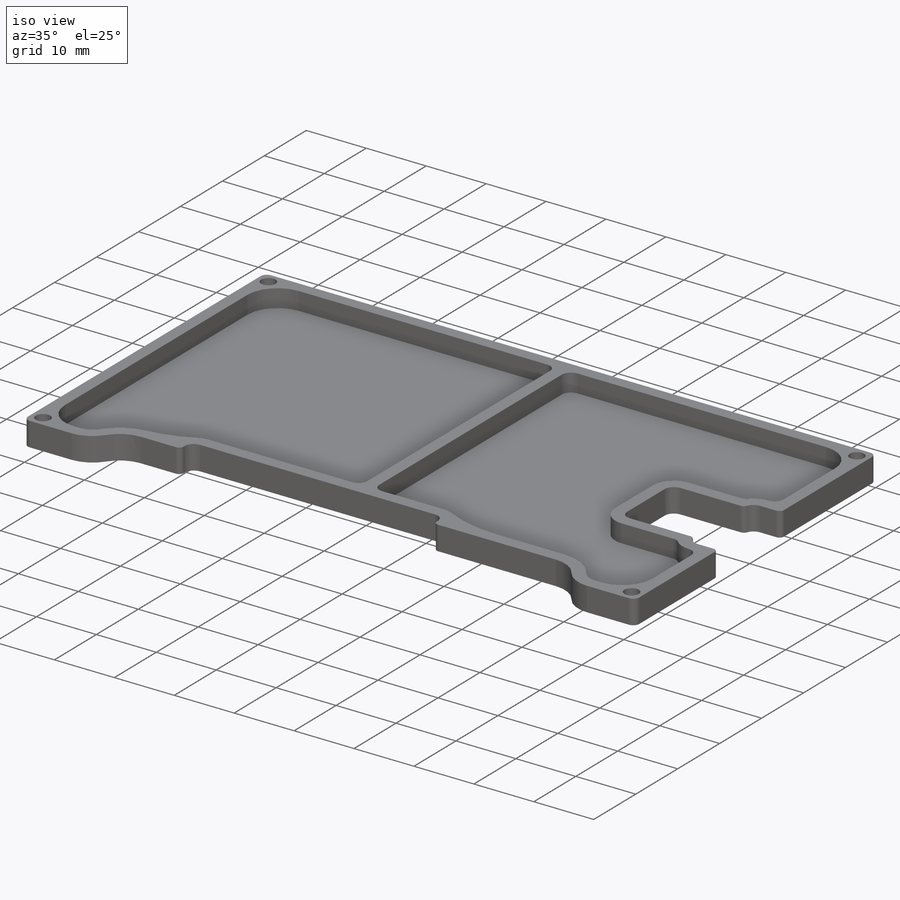
[diagram: iso view]
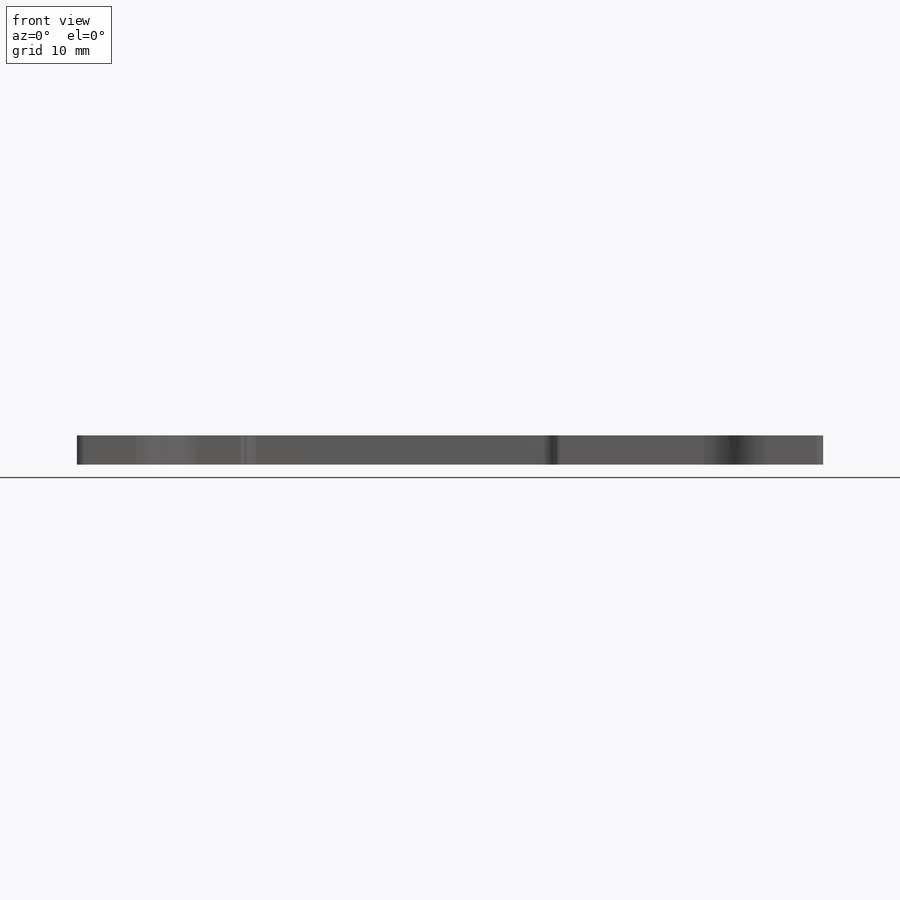
[diagram: front view]
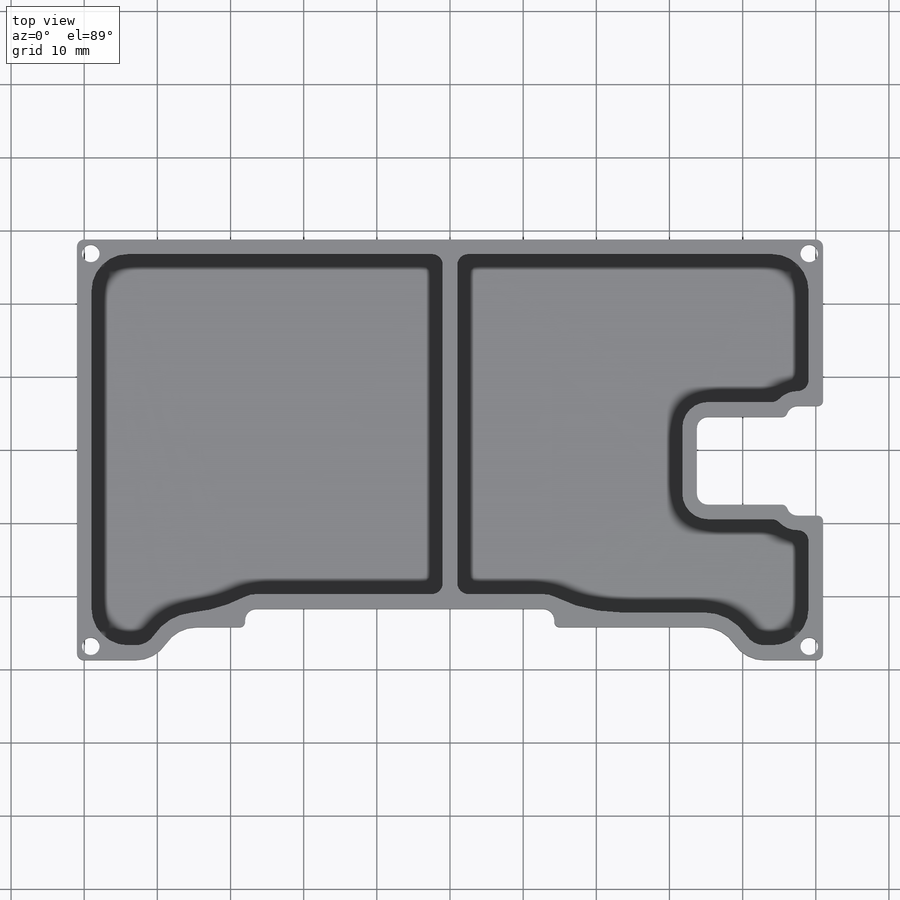
[diagram: top view]
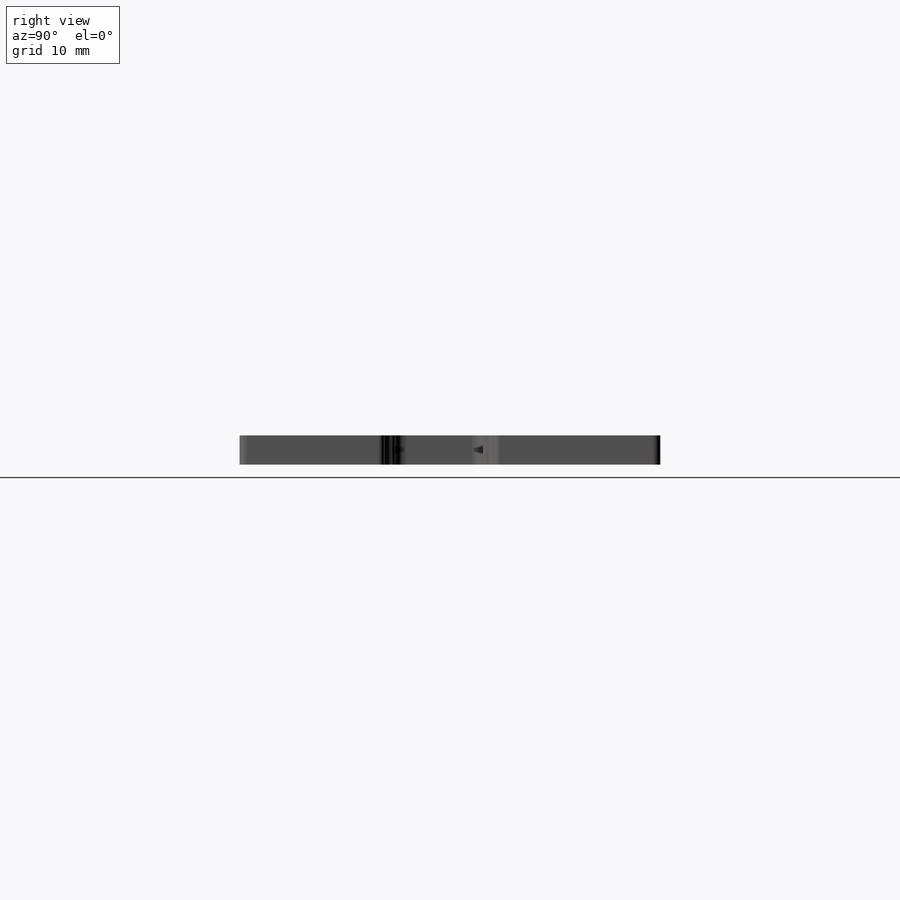
[diagram: right view]
SOLIDWORKS PART (.sldprt)
format: sldprt  version: not decoded by parser v0  size: 484,352 bytes
history: native  units: mm
features: sketch x6, fillet x6, plane x3, extrude x2, cut_extrude x2, material x1, hole x1 (+9 scaffold rows collapsed)
feature tree (30):
  scaffold x9  (default folders/planes/origin — collapsed)
  material  "7075-T6 (SN)"
  plane  "Ebene vorne"
  plane  "Ebene oben"
  plane  "Ebene rechts"
  sketch  "Skizze1"  dims[D1=102.0mm D2=57.5mm D3=98.2mm D4=53.7mm]
  extrude  "Aufsatz-Linear austragen1"  Depth=1mm
  fillet  "Verrundung1"  Radius=1mm
  sketch  "Skizze5"  dims[D3=5.0mm D1=8.0mm D2=8.0mm D4=4.5mm]
  cut_extrude  "Schnitt-Linear austragen1"  [1 undecoded]
  sketch  "Skizze6"  dims[c1.D1=42.25mm c1.D2=23.0mm c1.D3=2.5mm c1.D4=16.5mm c1.D5=14.5mm c1.D6=17.25mm c2.D4=21.25mm c2.D2=23.0mm c2.D5=12.0mm c2.D7=15.0mm c2.D8=5.0mm]
  cut_extrude  "Schnitt-Linear austragen2"  [1 undecoded]
  fillet  "Verrundung2"  Radius=1.5mm
  fillet  "Verrundung3"  Radius=0.75mm
  sketch  "Skizze8"  dims[D3=2.0mm D1=0.0mm D2=2.0mm]
  extrude  "Aufsatz-Linear austragen2"  Depth=3mm
  fillet  "Verrundung4"  Radius=5mm
  hole  "Durchgangsloch für M21"  Diameter=2.4mm Depth=4mm
  sketch  "Skizze4"  dims[D1=98.2mm D2=53.7mm]
  sketch  "Skizze2"  dims[hole-wizard template sketch: 59 standard entries collapsed; hole parameters kept: c18.Bohrerdurchmesser=2.4mm c18.Bohrungstiefe=4.0mm]
  fillet  "Verrundung5"  Radius=1.5mm
  fillet  "Verrundung6"  Radius=20mm
decode coverage: 15 of 17 modeling features carry decoded parameters
note: ~ marks probable driven/reference dimensions
note: 2 parameter values undecoded
note: suppression state not decoded; provenance and decode notes live in map.json
